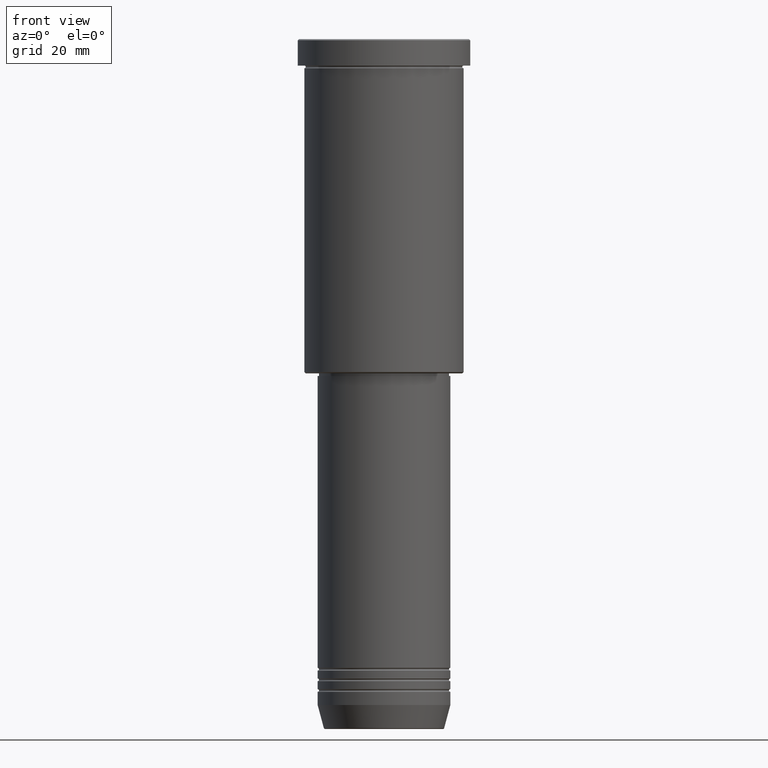
[diagram: clean part render]
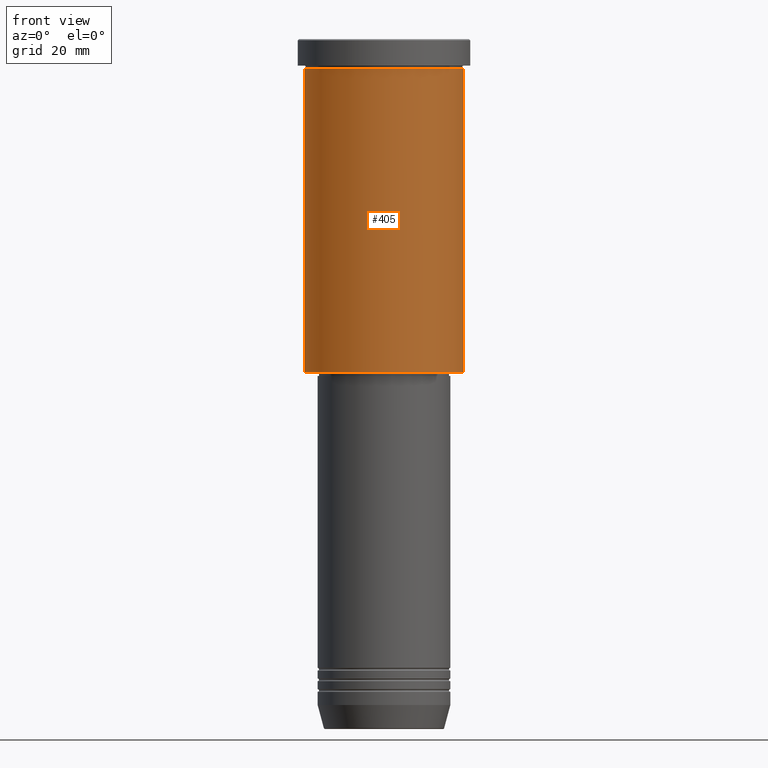
[diagram: same view with one face highlighted and labeled with its STEP entity id]
A machine part, front view. The second image highlights one B-rep face of the part: STEP entity #405.
In plain terms, the highlighted cylindrical surface (partial cylindrical patch) has radius 30 mm, axis along (-0, -0, 1).
Its self-contained STEP definition (entity closure, byte-faithful):
#18 = DIRECTION ( 'NONE',  ( -0.000000000000000000, -0.000000000000000000, 1.000000000000000000 ) ) ;
#44 = ORIENTED_EDGE ( 'NONE', *, *, #1049, .T. ) ;
#60 = DIRECTION ( 'NONE',  ( -0.000000000000000000, -0.000000000000000000, 1.000000000000000000 ) ) ;
#75 = VERTEX_POINT ( 'NONE', #744 ) ;
#86 = AXIS2_PLACEMENT_3D ( 'NONE', #720, #60, #424 ) ;
#111 = AXIS2_PLACEMENT_3D ( 'NONE', #1042, #889, #137 ) ;
#113 = DIRECTION ( 'NONE',  ( -0.000000000000000000, -0.000000000000000000, 1.000000000000000000 ) ) ;
#137 = DIRECTION ( 'NONE',  ( -1.000000000000000000, 0.000000000000000000, 0.000000000000000000 ) ) ;
#156 = ORIENTED_EDGE ( 'NONE', *, *, #554, .F. ) ;
#197 = DIRECTION ( 'NONE',  ( 1.000000000000000000, 0.000000000000000000, 0.000000000000000000 ) ) ;
#229 = VERTEX_POINT ( 'NONE', #589 ) ;
#244 = ORIENTED_EDGE ( 'NONE', *, *, #582, .T. ) ;
#278 = CARTESIAN_POINT ( 'NONE',  ( 30.00000000000000000, 0.000000000000000000, 0.000000000000000000 ) ) ;
#296 = AXIS2_PLACEMENT_3D ( 'NONE', #761, #113, #197 ) ;
#326 = DIRECTION ( 'NONE',  ( -0.000000000000000000, -0.000000000000000000, 1.000000000000000000 ) ) ;
#405 = ADVANCED_FACE ( 'NONE', ( #517 ), #888, .T. ) ;
#424 = DIRECTION ( 'NONE',  ( 1.000000000000000000, 0.000000000000000000, 0.000000000000000000 ) ) ;
#481 = ORIENTED_EDGE ( 'NONE', *, *, #1126, .F. ) ;
#501 = CARTESIAN_POINT ( 'NONE',  ( -30.00000000000000000, 3.673940397442059178E-15, 0.000000000000000000 ) ) ;
#505 = EDGE_LOOP ( 'NONE', ( #481, #44, #244, #156 ) ) ;
#517 = FACE_OUTER_BOUND ( 'NONE', #505, .T. ) ;
#554 = EDGE_CURVE ( 'NONE', #1147, #75, #1044, .T. ) ;
#582 = EDGE_CURVE ( 'NONE', #1117, #75, #1100, .T. ) ;
#589 = CARTESIAN_POINT ( 'NONE',  ( -30.00000000000000000, 3.673940397442059178E-15, -125.5000000000000000 ) ) ;
#673 = VECTOR ( 'NONE', #326, 1000.000000000000000 ) ;
#698 = CARTESIAN_POINT ( 'NONE',  ( 30.00000000000000000, 0.000000000000000000, -125.5000000000000000 ) ) ;
#720 = CARTESIAN_POINT ( 'NONE',  ( 0.000000000000000000, 0.000000000000000000, 0.000000000000000000 ) ) ;
#744 = CARTESIAN_POINT ( 'NONE',  ( 30.00000000000000000, 0.000000000000000000, -10.99999999999999289 ) ) ;
#761 = CARTESIAN_POINT ( 'NONE',  ( 0.000000000000000000, 0.000000000000000000, -10.99999999999999289 ) ) ;
#781 = LINE ( 'NONE', #501, #673 ) ;
#878 = CARTESIAN_POINT ( 'NONE',  ( -30.00000000000000000, 3.673940397442059178E-15, -10.99999999999999289 ) ) ;
#888 = CYLINDRICAL_SURFACE ( 'NONE', #86, 30.00000000000000000 ) ;
#889 = DIRECTION ( 'NONE',  ( -0.000000000000000000, -0.000000000000000000, 1.000000000000000000 ) ) ;
#952 = CIRCLE ( 'NONE', #111, 30.00000000000000000 ) ;
#1042 = CARTESIAN_POINT ( 'NONE',  ( 0.000000000000000000, 0.000000000000000000, -125.5000000000000000 ) ) ;
#1044 = CIRCLE ( 'NONE', #296, 30.00000000000000000 ) ;
#1049 = EDGE_CURVE ( 'NONE', #229, #1117, #952, .T. ) ;
#1100 = LINE ( 'NONE', #278, #1155 ) ;
#1117 = VERTEX_POINT ( 'NONE', #698 ) ;
#1126 = EDGE_CURVE ( 'NONE', #229, #1147, #781, .T. ) ;
#1147 = VERTEX_POINT ( 'NONE', #878 ) ;
#1155 = VECTOR ( 'NONE', #18, 1000.000000000000000 ) ;